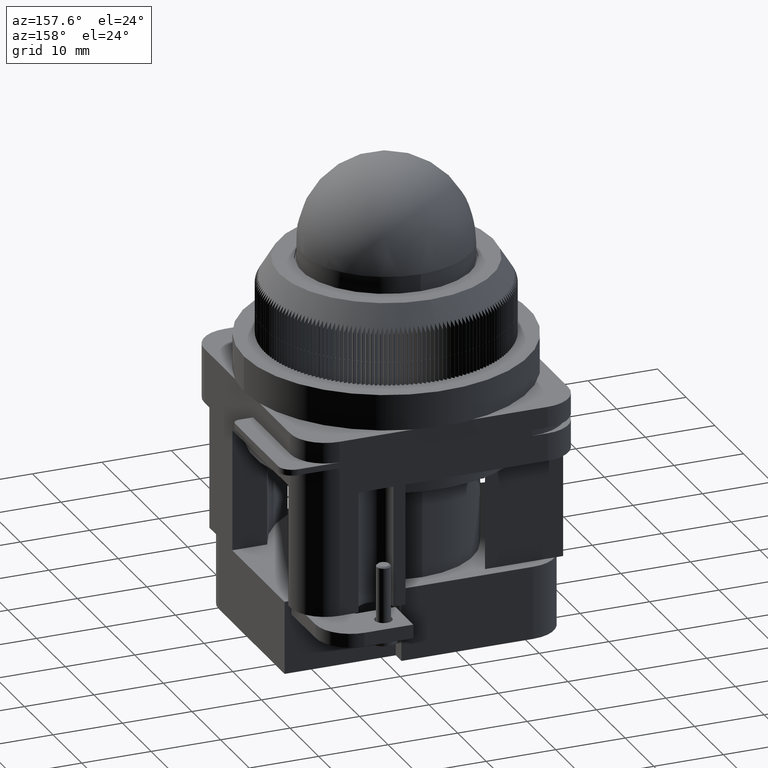
[diagram: clean part render]
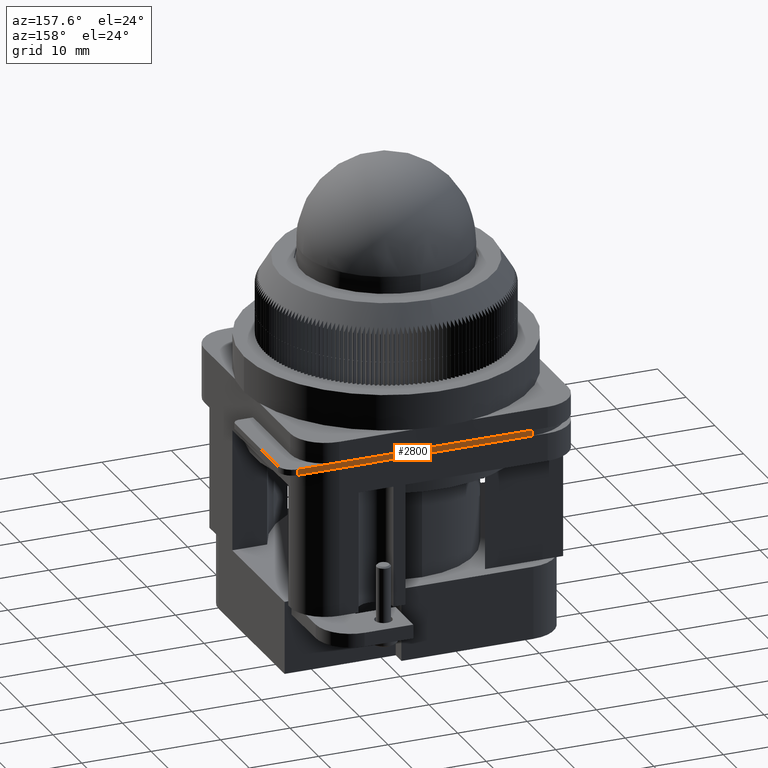
[diagram: same view with one face highlighted and labeled with its STEP entity id]
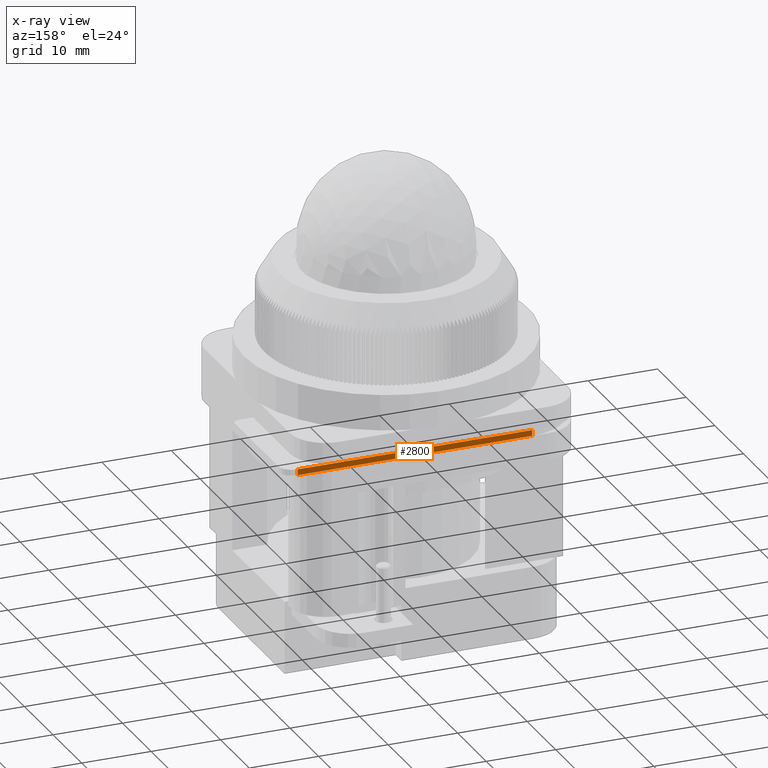
[diagram: x-ray of the same camera — body ghosted, the highlighted face saturated]
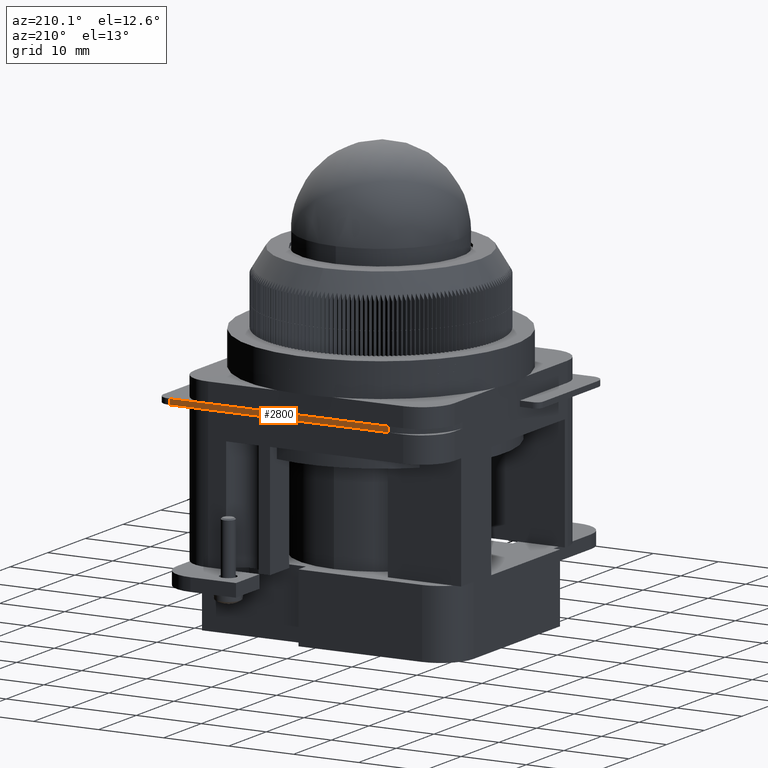
[diagram: same view with one face highlighted and labeled with its STEP entity id]
A machine part, auxiliary view. The second image highlights one B-rep face of the part: STEP entity #2800.
The next image is the same camera in x-ray: the body ghosted, the highlighted face saturated — about 0% of this face is hidden behind the body in this view.
A second angle (auxiliary view) of the same face is appended — the face is thin or edge-on in the first view.
In plain terms, the highlighted planar face has unit normal (0, 1, 0).
Its self-contained STEP definition (entity closure, byte-faithful):
#2360=CARTESIAN_POINT('',(2.057038411230605,-8.858465455814152,0.850000000000000));
#2361=VERTEX_POINT('',#2360);
#2379=CARTESIAN_POINT('',(2.057038411230605,-8.858465455814152,0.0));
#2380=VERTEX_POINT('',#2379);
#2388=CARTESIAN_POINT('',(2.057038411230605,-8.858465455814152,0.0));
#2389=DIRECTION('',(0.0,0.0,1.0));
#2390=VECTOR('',#2389,0.850000000000000);
#2391=LINE('',#2388,#2390);
#2392=EDGE_CURVE('',#2380,#2361,#2391,.T.);
#2751=CARTESIAN_POINT('',(35.827586283971542,-8.858465455814145,0.850000000000000));
#2752=VERTEX_POINT('',#2751);
#2760=CARTESIAN_POINT('',(35.827586283971542,-8.858465455814145,0.0));
#2761=VERTEX_POINT('',#2760);
#2762=CARTESIAN_POINT('',(35.827586283971542,-8.858465455814145,0.0));
#2763=DIRECTION('',(0.0,0.0,1.0));
#2764=VECTOR('',#2763,0.850000000000000);
#2765=LINE('',#2762,#2764);
#2766=EDGE_CURVE('',#2761,#2752,#2765,.T.);
#2779=CARTESIAN_POINT('',(29.827586283971520,-8.858465455814146,0.0));
#2780=DIRECTION('',(0.0,-1.0,0.0));
#2781=DIRECTION('',(0.0,0.0,-1.0));
#2782=AXIS2_PLACEMENT_3D('',#2779,#2780,#2781);
#2783=PLANE('',#2782);
#2784=CARTESIAN_POINT('',(35.827586283971542,-8.858465455814145,0.850000000000000));
#2785=DIRECTION('',(-1.0,0.0,0.0));
#2786=VECTOR('',#2785,33.770547872740934);
#2787=LINE('',#2784,#2786);
#2788=EDGE_CURVE('',#2752,#2361,#2787,.T.);
#2789=ORIENTED_EDGE('',*,*,#2788,.T.);
#2790=ORIENTED_EDGE('',*,*,#2392,.F.);
#2791=CARTESIAN_POINT('',(35.827586283971542,-8.858465455814145,0.0));
#2792=DIRECTION('',(-1.0,0.0,0.0));
#2793=VECTOR('',#2792,33.770547872740934);
#2794=LINE('',#2791,#2793);
#2795=EDGE_CURVE('',#2761,#2380,#2794,.T.);
#2796=ORIENTED_EDGE('',*,*,#2795,.F.);
#2797=ORIENTED_EDGE('',*,*,#2766,.T.);
#2798=EDGE_LOOP('',(#2789,#2790,#2796,#2797));
#2799=FACE_OUTER_BOUND('',#2798,.T.);
#2800=ADVANCED_FACE('',(#2799),#2783,.T.);